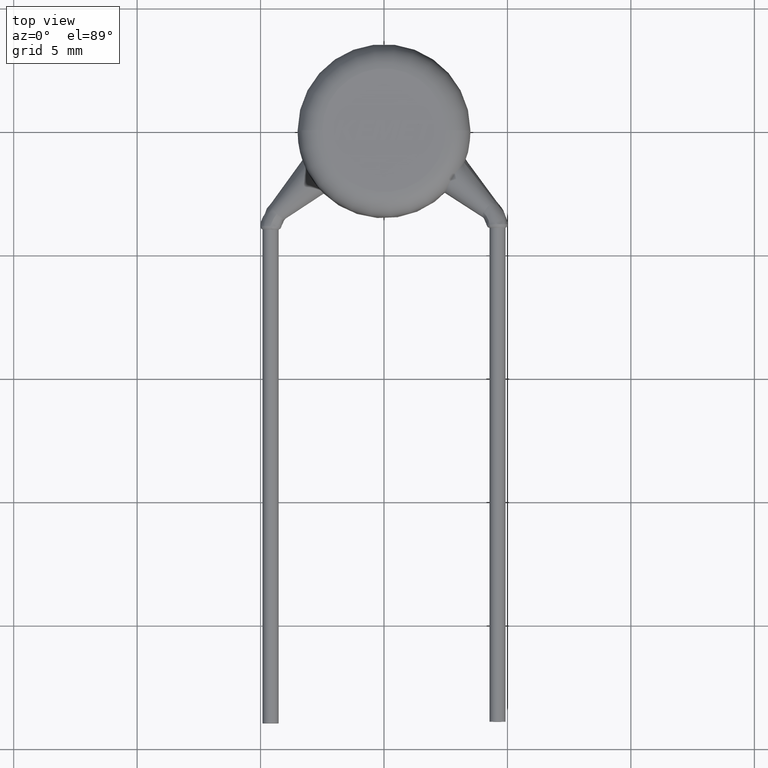
[diagram: clean part render]
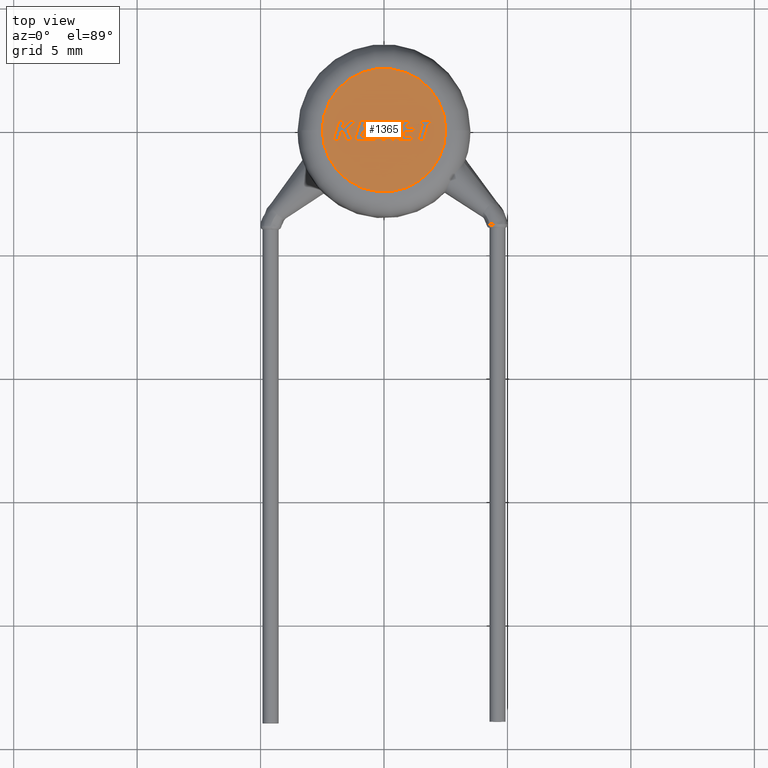
[diagram: same view with one face highlighted and labeled with its STEP entity id]
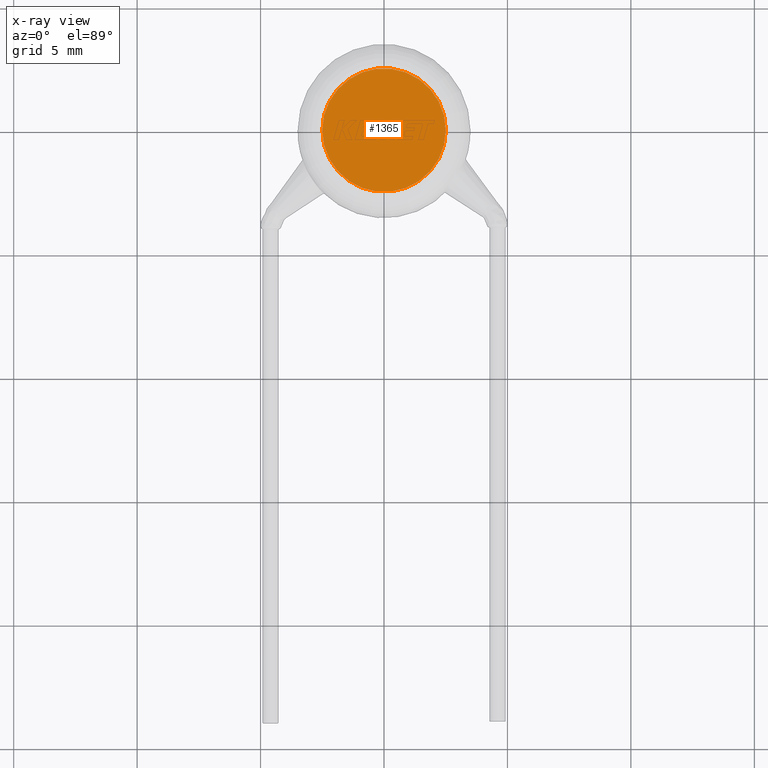
[diagram: x-ray of the same camera — body ghosted, the highlighted face saturated]
A machine part, top view. The second image highlights one B-rep face of the part: STEP entity #1365.
The next image is the same camera in x-ray: the body ghosted, the highlighted face saturated — about 0% of this face is hidden behind the body in this view.
In plain terms, the highlighted planar face has unit normal (0, 0, 1).
Its self-contained STEP definition (entity closure, byte-faithful):
#425 = EDGE_CURVE ( 'NONE', #2062, #545, #1619, .T. ) ;
#545 = VERTEX_POINT ( 'NONE', #2828 ) ;
#938 = DIRECTION ( 'NONE',  ( 0.0000000000000000000, 0.0000000000000000000, 1.000000000000000000 ) ) ;
#1131 = AXIS2_PLACEMENT_3D ( 'NONE', #1895, #938, #1911 ) ;
#1365 = ADVANCED_FACE ( 'NONE', ( #3035 ), #3787, .T. ) ;
#1512 = CARTESIAN_POINT ( 'NONE',  ( -2.500000000000000000, 3.673940397442059900E-016, 5.000000000000000000 ) ) ;
#1619 = CIRCLE ( 'NONE', #3959, 2.500000000000000000 ) ;
#1858 = CARTESIAN_POINT ( 'NONE',  ( 0.0000000000000000000, 0.0000000000000000000, 5.000000000000000000 ) ) ;
#1895 = CARTESIAN_POINT ( 'NONE',  ( 0.0000000000000000000, 0.0000000000000000000, 5.000000000000000000 ) ) ;
#1911 = DIRECTION ( 'NONE',  ( 1.000000000000000000, 0.0000000000000000000, 0.0000000000000000000 ) ) ;
#2052 = AXIS2_PLACEMENT_3D ( 'NONE', #1858, #2821, #3459 ) ;
#2062 = VERTEX_POINT ( 'NONE', #1512 ) ;
#2429 = DIRECTION ( 'NONE',  ( 1.000000000000000000, 0.0000000000000000000, 0.0000000000000000000 ) ) ;
#2500 = EDGE_LOOP ( 'NONE', ( #2775, #2587 ) ) ;
#2587 = ORIENTED_EDGE ( 'NONE', *, *, #425, .T. ) ;
#2633 = CARTESIAN_POINT ( 'NONE',  ( 0.0000000000000000000, 0.0000000000000000000, 5.000000000000000000 ) ) ;
#2775 = ORIENTED_EDGE ( 'NONE', *, *, #3371, .T. ) ;
#2821 = DIRECTION ( 'NONE',  ( 0.0000000000000000000, 0.0000000000000000000, 1.000000000000000000 ) ) ;
#2828 = CARTESIAN_POINT ( 'NONE',  ( 2.500000000000000000, 0.0000000000000000000, 5.000000000000000000 ) ) ;
#3035 = FACE_OUTER_BOUND ( 'NONE', #2500, .T. ) ;
#3370 = CIRCLE ( 'NONE', #1131, 2.500000000000000000 ) ;
#3371 = EDGE_CURVE ( 'NONE', #545, #2062, #3370, .T. ) ;
#3389 = DIRECTION ( 'NONE',  ( 0.0000000000000000000, 0.0000000000000000000, 1.000000000000000000 ) ) ;
#3459 = DIRECTION ( 'NONE',  ( 1.000000000000000000, 0.0000000000000000000, -0.0000000000000000000 ) ) ;
#3787 = PLANE ( 'NONE',  #2052 ) ;
#3959 = AXIS2_PLACEMENT_3D ( 'NONE', #2633, #3389, #2429 ) ;